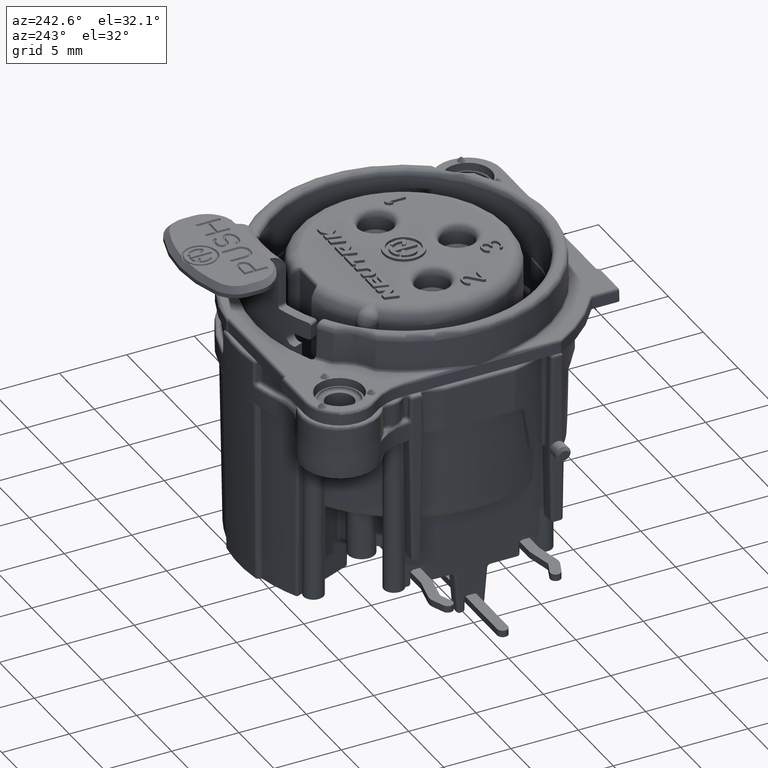
[diagram: clean part render]
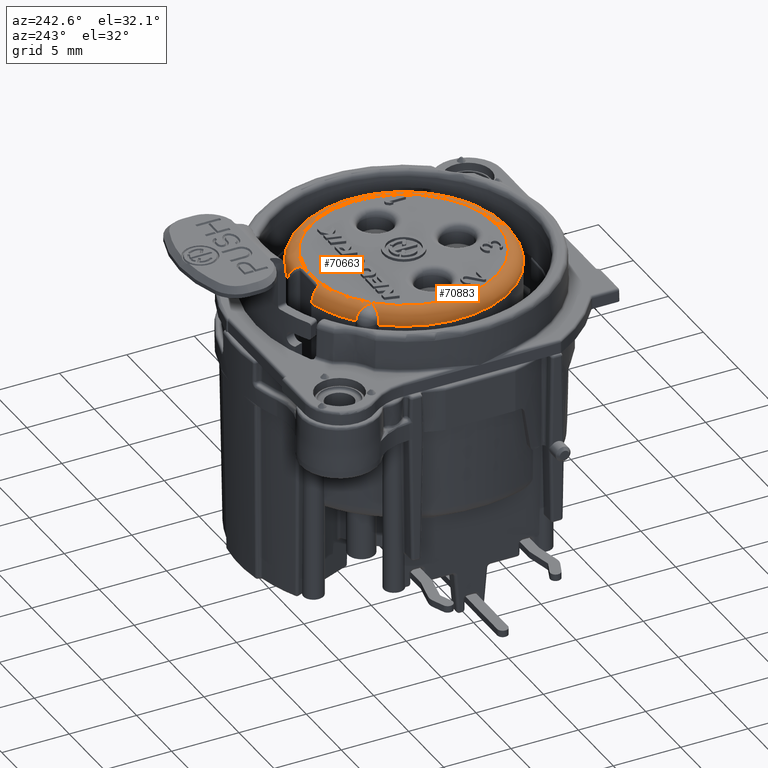
[diagram: same view with one multi-face feature highlighted, each face labeled with its STEP entity id]
A machine part, auxiliary view. The highlighted faces form ONE feature: a constant-radius fillet chain: 2 tangent blend faces with common blend radius 1 mm. The faces share edges in the B-rep.
Their STEP definitions:
[1] entity #70663 (Torus):
#13185=CARTESIAN_POINT('',(0.E0,0.E0,6.15E0));
#13186=DIRECTION('',(0.E0,0.E0,1.E0));
#13187=DIRECTION('',(-2.161305200250E-1,9.763644802602E-1,0.E0));
#13188=AXIS2_PLACEMENT_3D('',#13185,#13186,#13187);
#13200=CARTESIAN_POINT('',(0.E0,0.E0,6.15E0));
#13201=DIRECTION('',(0.E0,0.E0,-1.E0));
#13202=DIRECTION('',(2.161305200250E-1,9.763644802602E-1,0.E0));
#13203=AXIS2_PLACEMENT_3D('',#13200,#13201,#13202);
#22729=CARTESIAN_POINT('',(-1.435140091640E0,7.178460779582E0,
7.057287044488E0));
#22730=CARTESIAN_POINT('',(-1.467040880273E0,7.241628298959E0,
7.025669357041E0));
#22731=CARTESIAN_POINT('',(-1.527517102212E0,7.361044498237E0,
6.947103580666E0));
#22732=CARTESIAN_POINT('',(-1.603338048033E0,7.509906566587E0,
6.789821186677E0));
#22733=CARTESIAN_POINT('',(-1.660190508852E0,7.621138748930E0,
6.604724607287E0));
#22734=CARTESIAN_POINT('',(-1.698010220530E0,7.694917957370E0,
6.390465940850E0));
#22735=CARTESIAN_POINT('',(-1.707418209538E0,7.713262283722E0,
6.231332289433E0));
#22736=CARTESIAN_POINT('',(-1.707429503948E0,7.713272148926E0,
6.149999997797E0));
#22738=CARTESIAN_POINT('',(-1.435140091640E0,7.178460779582E0,
7.057287044488E0));
#22739=CARTESIAN_POINT('',(-1.415215707993E0,7.138998271634E0,
7.077053114983E0));
#22740=CARTESIAN_POINT('',(-1.368158407817E0,7.069212253663E0,
7.105933913041E0));
#22741=CARTESIAN_POINT('',(-1.280521795891E0,6.990642987340E0,
7.129447304990E0));
#22742=CARTESIAN_POINT('',(-1.187019436558E0,6.944676552178E0,
7.139731953391E0));
#22743=CARTESIAN_POINT('',(-1.125393880772E0,6.933153795E0,7.142323267889E0));
#22744=CARTESIAN_POINT('',(-1.093402273690E0,6.932033681740E0,
7.143045881813E0));
#22746=CARTESIAN_POINT('',(-7.953166926782E-3,6.912336890533E0,
7.149934644872E0));
#22747=CARTESIAN_POINT('',(-1.463721570113E-1,6.912374065960E0,
7.149924579972E0));
#22748=CARTESIAN_POINT('',(-4.105401938613E-1,6.914398373540E0,
7.149847438168E0));
#22749=CARTESIAN_POINT('',(-7.699981693297E-1,6.921680085632E0,
7.148472470141E0));
#22750=CARTESIAN_POINT('',(-9.895063593294E-1,6.928368499830E0,
7.145393946080E0));
#22751=CARTESIAN_POINT('',(-1.093402273690E0,6.932033681740E0,
7.143045881813E0));
#22753=CARTESIAN_POINT('',(1.093371330092E0,6.932063256455E0,7.143044057146E0));
#22754=CARTESIAN_POINT('',(9.854576800481E-1,6.928255621190E0,
7.145483089539E0));
#22755=CARTESIAN_POINT('',(7.593911614350E-1,6.921367258586E0,
7.148576779365E0));
#22756=CARTESIAN_POINT('',(3.939139761979E-1,6.914162232975E0,
7.149859849240E0));
#22757=CARTESIAN_POINT('',(1.296691908700E-1,6.912299895408E0,
7.149942538828E0));
#22758=CARTESIAN_POINT('',(-7.953166926782E-3,6.912336890533E0,
7.149934644872E0));
#22760=CARTESIAN_POINT('',(1.093371330092E0,6.932063256455E0,7.143044057146E0));
#22761=CARTESIAN_POINT('',(1.117671173307E0,6.932924659405E0,7.142493921954E0));
#22762=CARTESIAN_POINT('',(1.161621137553E0,6.939840789968E0,7.140780732554E0));
#22763=CARTESIAN_POINT('',(1.219591652091E0,6.960486356912E0,7.136238939919E0));
#22764=CARTESIAN_POINT('',(1.268656169086E0,6.987455223732E0,7.129692610836E0));
#22765=CARTESIAN_POINT('',(1.309855102946E0,7.017737970003E0,7.121302937156E0));
#22766=CARTESIAN_POINT('',(1.344378867716E0,7.049676118907E0,7.111212546308E0));
#22767=CARTESIAN_POINT('',(1.372327719745E0,7.080934724039E0,7.100099501980E0));
#22768=CARTESIAN_POINT('',(1.396072922498E0,7.112212412888E0,7.087774714173E0));
#22769=CARTESIAN_POINT('',(1.417057805940E0,7.144643074594E0,7.073687387223E0));
#22770=CARTESIAN_POINT('',(1.429304428557E0,7.166951988726E0,7.063044670225E0));
#22771=CARTESIAN_POINT('',(1.435083376924E0,7.178392684990E0,7.057320472738E0));
#22773=CARTESIAN_POINT('',(1.707429659820E0,7.713272852732E0,6.149999996958E0));
#22774=CARTESIAN_POINT('',(1.707420557064E0,7.713264906913E0,6.226228685106E0));
#22775=CARTESIAN_POINT('',(1.699096806204E0,7.697036100128E0,6.377956638165E0));
#22776=CARTESIAN_POINT('',(1.663858259232E0,7.628299955659E0,6.589369547013E0));
#22777=CARTESIAN_POINT('',(1.606554727803E0,7.516219175289E0,6.782287791831E0));
#22778=CARTESIAN_POINT('',(1.529460882280E0,7.364859062505E0,6.944315459139E0));
#22779=CARTESIAN_POINT('',(1.467716075006E0,7.243010032015E0,7.024985614737E0));
#22780=CARTESIAN_POINT('',(1.435083376924E0,7.178392684990E0,7.057320472738E0));
#22782=CARTESIAN_POINT('',(0.E0,-6.9E0,6.15E0));
#22783=DIRECTION('',(1.E0,0.E0,0.E0));
#22784=DIRECTION('',(0.E0,0.E0,1.E0));
#22785=AXIS2_PLACEMENT_3D('',#22782,#22783,#22784);
#22787=CARTESIAN_POINT('',(0.E0,0.E0,7.15E0));
#22788=DIRECTION('',(0.E0,0.E0,1.E0));
#22789=DIRECTION('',(0.E0,-1.E0,0.E0));
#22790=AXIS2_PLACEMENT_3D('',#22787,#22788,#22789);
#22792=CARTESIAN_POINT('',(-4.879036790187E0,4.879036790187E0,7.15E0));
#22793=CARTESIAN_POINT('',(-4.887000195884E0,4.989952723134E0,7.15E0));
#22794=CARTESIAN_POINT('',(-4.900737616892E0,5.202178073943E0,
7.129063313939E0));
#22795=CARTESIAN_POINT('',(-4.918064072564E0,5.484162293362E0,
7.044583534294E0));
#22796=CARTESIAN_POINT('',(-4.934519373991E0,5.713769119143E0,
6.920814870046E0));
#22797=CARTESIAN_POINT('',(-4.953409799702E0,5.895190386142E0,
6.763314167505E0));
#22798=CARTESIAN_POINT('',(-4.977714966501E0,6.019314236139E0,
6.579364792134E0));
#22799=CARTESIAN_POINT('',(-4.997298147473E0,6.057958319252E0,
6.458495327107E0));
#22800=CARTESIAN_POINT('',(-5.008026734703E0,6.068686906483E0,6.4E0));
#22802=CARTESIAN_POINT('',(-5.008026734703E0,6.068686906483E0,6.4E0));
#22803=CARTESIAN_POINT('',(-5.015558599465E0,6.076218771244E0,
6.358934118399E0));
#22804=CARTESIAN_POINT('',(-5.026792419446E0,6.087452591226E0,
6.276182042223E0));
#22805=CARTESIAN_POINT('',(-5.030582608983E0,6.091242780763E0,
6.192259642425E0));
#22806=CARTESIAN_POINT('',(-5.030582608983E0,6.091242780763E0,6.15E0));
#33267=CARTESIAN_POINT('',(0.E0,-6.9E0,7.15E0));
#33268=CARTESIAN_POINT('',(0.E0,-7.9E0,6.15E0));
#33269=VERTEX_POINT('',#33267);
#33270=VERTEX_POINT('',#33268);
#33292=CARTESIAN_POINT('',(-5.030582608983E0,6.091242780763E0,6.15E0));
#33294=VERTEX_POINT('',#33292);
#33301=VERTEX_POINT('',#22802);
#33302=VERTEX_POINT('',#22792);
#35498=VERTEX_POINT('',#22729);
#35499=VERTEX_POINT('',#22736);
#35504=VERTEX_POINT('',#22773);
#35505=VERTEX_POINT('',#22780);
#35507=CARTESIAN_POINT('',(1.093794950067E0,6.932124790041E0,7.143026449088E0));
#35508=VERTEX_POINT('',#35507);
#35511=VERTEX_POINT('',#22746);
#35512=VERTEX_POINT('',#22751);
#70635=CARTESIAN_POINT('',(0.E0,0.E0,6.15E0));
#70636=DIRECTION('',(0.E0,0.E0,1.E0));
#70637=DIRECTION('',(0.E0,-1.E0,0.E0));
#70638=AXIS2_PLACEMENT_3D('',#70635,#70636,#70637);
#70639=TOROIDAL_SURFACE('',#70638,6.9E0,1.E0);
#70641=ORIENTED_EDGE('',*,*,#70640,.F.);
#70643=ORIENTED_EDGE('',*,*,#70642,.T.);
#70645=ORIENTED_EDGE('',*,*,#70644,.F.);
#70647=ORIENTED_EDGE('',*,*,#70646,.F.);
#70649=ORIENTED_EDGE('',*,*,#70648,.T.);
#70650=ORIENTED_EDGE('',*,*,#70628,.F.);
#70651=ORIENTED_EDGE('',*,*,#56296,.T.);
#70653=ORIENTED_EDGE('',*,*,#70652,.F.);
#70655=ORIENTED_EDGE('',*,*,#70654,.T.);
#70657=ORIENTED_EDGE('',*,*,#70656,.T.);
#70659=ORIENTED_EDGE('',*,*,#70658,.T.);
#70660=ORIENTED_EDGE('',*,*,#56275,.F.);
#70661=EDGE_LOOP('',(#70641,#70643,#70645,#70647,#70649,#70650,#70651,#70653,
#70655,#70657,#70659,#70660));
#70662=FACE_OUTER_BOUND('',#70661,.F.);
#13189=CIRCLE('',#13188,7.9E0);
#13204=CIRCLE('',#13203,7.9E0);
#22737=B_SPLINE_CURVE_WITH_KNOTS('',3,(#22729,#22730,#22731,#22732,#22733,
#22734,#22735,#22736),.UNSPECIFIED.,.F.,.F.,(4,1,1,1,1,4),(0.E0,2.E-1,4.E-1,
6.E-1,8.E-1,1.E0),.UNSPECIFIED.);
#22745=B_SPLINE_CURVE_WITH_KNOTS('',3,(#22738,#22739,#22740,#22741,#22742,
#22743,#22744),.UNSPECIFIED.,.F.,.F.,(4,1,1,1,4),(0.E0,2.5E-1,5.E-1,7.5E-1,
1.E0),.UNSPECIFIED.);
#22752=B_SPLINE_CURVE_WITH_KNOTS('',3,(#22746,#22747,#22748,#22749,#22750,
#22751),.UNSPECIFIED.,.F.,.F.,(4,1,1,4),(0.E0,3.333333333333E-1,
6.666666666667E-1,1.E0),.UNSPECIFIED.);
#22759=B_SPLINE_CURVE_WITH_KNOTS('',3,(#22753,#22754,#22755,#22756,#22757,
#22758),.UNSPECIFIED.,.F.,.F.,(4,1,1,4),(0.E0,3.333333333333E-1,
6.666666666667E-1,1.E0),.UNSPECIFIED.);
#22772=B_SPLINE_CURVE_WITH_KNOTS('',3,(#22760,#22761,#22762,#22763,#22764,
#22765,#22766,#22767,#22768,#22769,#22770,#22771),.UNSPECIFIED.,.F.,.F.,(4,1,1,
1,1,1,1,1,1,4),(0.E0,1.111111111111E-1,2.222222222222E-1,3.333333333333E-1,
4.444444444444E-1,5.555555555556E-1,6.666666666667E-1,7.777777777778E-1,
8.888888888889E-1,1.E0),.UNSPECIFIED.);
#22781=B_SPLINE_CURVE_WITH_KNOTS('',3,(#22773,#22774,#22775,#22776,#22777,
#22778,#22779,#22780),.UNSPECIFIED.,.F.,.F.,(4,1,1,1,1,4),(0.E0,2.E-1,4.E-1,
6.E-1,8.E-1,1.E0),.UNSPECIFIED.);
#22786=CIRCLE('',#22785,1.E0);
#22791=CIRCLE('',#22790,6.9E0);
#22801=B_SPLINE_CURVE_WITH_KNOTS('',3,(#22792,#22793,#22794,#22795,#22796,
#22797,#22798,#22799,#22800),.UNSPECIFIED.,.F.,.F.,(4,1,1,1,1,1,4),(0.E0,
1.666666666667E-1,3.333333333333E-1,5.E-1,6.666666666667E-1,8.333333333333E-1,
1.E0),.UNSPECIFIED.);
#22807=B_SPLINE_CURVE_WITH_KNOTS('',3,(#22802,#22803,#22804,#22805,#22806),
.UNSPECIFIED.,.F.,.F.,(4,1,4),(0.E0,5.E-1,1.E0),.UNSPECIFIED.);
#56275=EDGE_CURVE('',#35499,#33294,#13189,.T.);
#56296=EDGE_CURVE('',#35504,#33270,#13204,.T.);
#70628=EDGE_CURVE('',#35504,#35505,#22781,.T.);
#70640=EDGE_CURVE('',#35498,#35499,#22737,.T.);
#70642=EDGE_CURVE('',#35498,#35512,#22745,.T.);
#70644=EDGE_CURVE('',#35511,#35512,#22752,.T.);
#70646=EDGE_CURVE('',#35508,#35511,#22759,.T.);
#70648=EDGE_CURVE('',#35508,#35505,#22772,.T.);
#70652=EDGE_CURVE('',#33269,#33270,#22786,.T.);
#70654=EDGE_CURVE('',#33269,#33302,#22791,.T.);
#70656=EDGE_CURVE('',#33302,#33301,#22801,.T.);
#70658=EDGE_CURVE('',#33301,#33294,#22807,.T.);
#70663=ADVANCED_FACE('',(#70662),#70639,.T.);
[2] entity #70883 (Torus):
#13195=CARTESIAN_POINT('',(0.E0,0.E0,6.15E0));
#13196=DIRECTION('',(0.E0,0.E0,1.E0));
#13197=DIRECTION('',(-7.710433899700E-1,6.367826087320E-1,0.E0));
#13198=AXIS2_PLACEMENT_3D('',#13195,#13196,#13197);
#22782=CARTESIAN_POINT('',(0.E0,-6.9E0,6.15E0));
#22783=DIRECTION('',(1.E0,0.E0,0.E0));
#22784=DIRECTION('',(0.E0,0.E0,1.E0));
#22785=AXIS2_PLACEMENT_3D('',#22782,#22783,#22784);
#22792=CARTESIAN_POINT('',(-4.879036790187E0,4.879036790187E0,7.15E0));
#22849=CARTESIAN_POINT('',(-6.068686906483E0,5.008026734703E0,6.4E0));
#22850=CARTESIAN_POINT('',(-6.057654766494E0,4.996994594714E0,
6.460150383593E0));
#22851=CARTESIAN_POINT('',(-6.017548784140E0,4.977056243220E0,
6.583738968764E0));
#22852=CARTESIAN_POINT('',(-5.889790267522E0,4.952638959354E0,
6.769584270472E0));
#22853=CARTESIAN_POINT('',(-5.705170243262E0,4.933807736255E0,
6.926677186682E0));
#22854=CARTESIAN_POINT('',(-5.474410239721E0,4.917450147909E0,
7.048416339450E0));
#22855=CARTESIAN_POINT('',(-5.194445804235E0,4.900259132056E0,
7.130214901876E0));
#22856=CARTESIAN_POINT('',(-4.986931865632E0,4.886783308073E0,7.15E0));
#22857=CARTESIAN_POINT('',(-4.879036790187E0,4.879036790187E0,7.15E0));
#22859=CARTESIAN_POINT('',(0.E0,0.E0,7.15E0));
#22860=DIRECTION('',(0.E0,0.E0,1.E0));
#22861=DIRECTION('',(-7.071067811865E-1,7.071067811865E-1,0.E0));
#22862=AXIS2_PLACEMENT_3D('',#22859,#22860,#22861);
#22864=CARTESIAN_POINT('',(-6.091242780763E0,5.030582608983E0,6.15E0));
#22865=CARTESIAN_POINT('',(-6.091242780763E0,5.030582608983E0,
6.192328007670E0));
#22866=CARTESIAN_POINT('',(-6.087440166021E0,5.026779994241E0,
6.276319857209E0));
#22867=CARTESIAN_POINT('',(-6.076206633814E0,5.015546462034E0,
6.359000295144E0));
#22868=CARTESIAN_POINT('',(-6.068686906483E0,5.008026734703E0,6.4E0));
#33267=CARTESIAN_POINT('',(0.E0,-6.9E0,7.15E0));
#33268=CARTESIAN_POINT('',(0.E0,-7.9E0,6.15E0));
#33269=VERTEX_POINT('',#33267);
#33270=VERTEX_POINT('',#33268);
#33296=CARTESIAN_POINT('',(-6.091242780763E0,5.030582608983E0,6.15E0));
#33298=VERTEX_POINT('',#33296);
#33302=VERTEX_POINT('',#22792);
#33303=VERTEX_POINT('',#22849);
#70868=CARTESIAN_POINT('',(0.E0,0.E0,6.15E0));
#70869=DIRECTION('',(0.E0,0.E0,1.E0));
#70870=DIRECTION('',(0.E0,-1.E0,0.E0));
#70871=AXIS2_PLACEMENT_3D('',#70868,#70869,#70870);
#70872=TOROIDAL_SURFACE('',#70871,6.9E0,1.E0);
#70874=ORIENTED_EDGE('',*,*,#70873,.T.);
#70876=ORIENTED_EDGE('',*,*,#70875,.T.);
#70877=ORIENTED_EDGE('',*,*,#70652,.T.);
#70878=ORIENTED_EDGE('',*,*,#56294,.F.);
#70880=ORIENTED_EDGE('',*,*,#70879,.T.);
#70881=EDGE_LOOP('',(#70874,#70876,#70877,#70878,#70880));
#70882=FACE_OUTER_BOUND('',#70881,.F.);
#13199=CIRCLE('',#13198,7.9E0);
#22786=CIRCLE('',#22785,1.E0);
#22858=B_SPLINE_CURVE_WITH_KNOTS('',3,(#22849,#22850,#22851,#22852,#22853,
#22854,#22855,#22856,#22857),.UNSPECIFIED.,.F.,.F.,(4,1,1,1,1,1,4),(0.E0,
1.666666666667E-1,3.333333333333E-1,5.E-1,6.666666666667E-1,8.333333333333E-1,
1.E0),.UNSPECIFIED.);
#22863=CIRCLE('',#22862,6.9E0);
#22869=B_SPLINE_CURVE_WITH_KNOTS('',3,(#22864,#22865,#22866,#22867,#22868),
.UNSPECIFIED.,.F.,.F.,(4,1,4),(0.E0,5.E-1,1.E0),.UNSPECIFIED.);
#56294=EDGE_CURVE('',#33298,#33270,#13199,.T.);
#70652=EDGE_CURVE('',#33269,#33270,#22786,.T.);
#70873=EDGE_CURVE('',#33303,#33302,#22858,.T.);
#70875=EDGE_CURVE('',#33302,#33269,#22863,.T.);
#70879=EDGE_CURVE('',#33298,#33303,#22869,.T.);
#70883=ADVANCED_FACE('',(#70882),#70872,.T.);